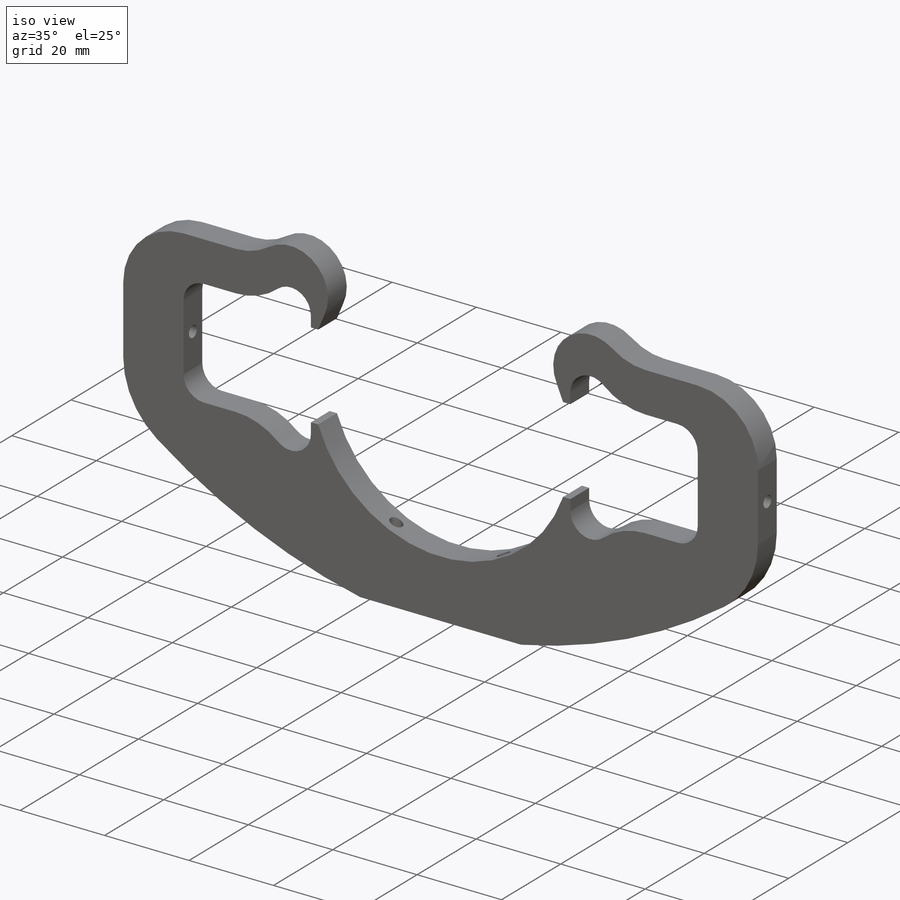
[diagram: iso view]
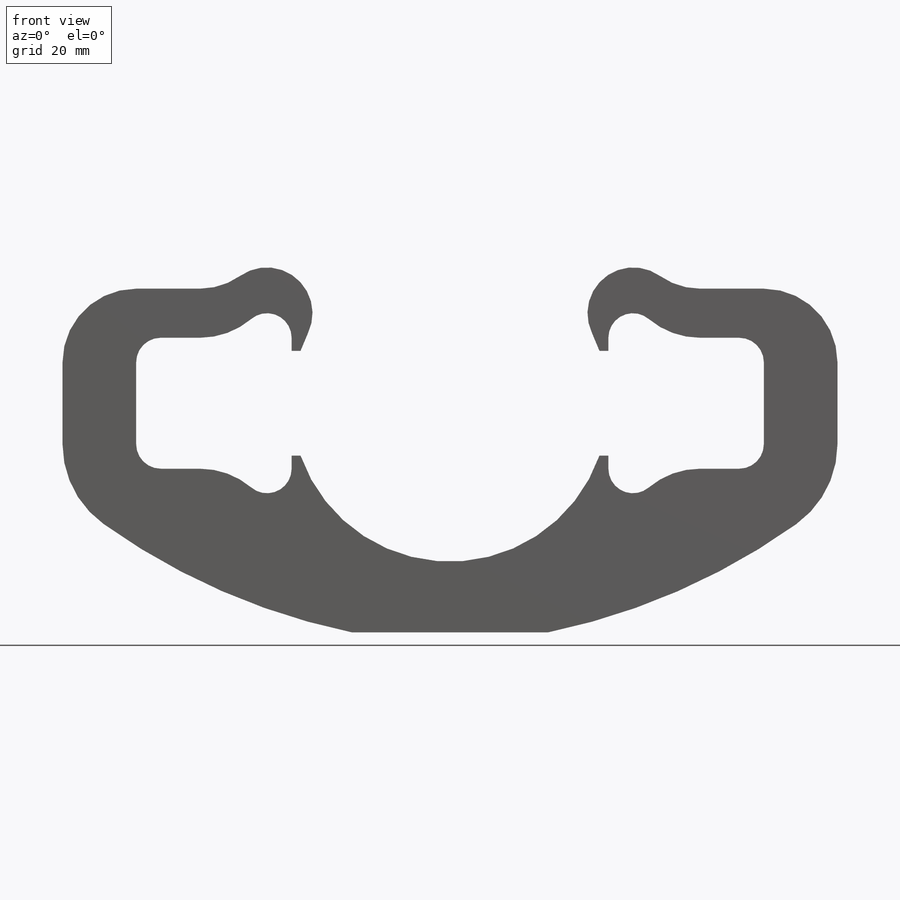
[diagram: front view]
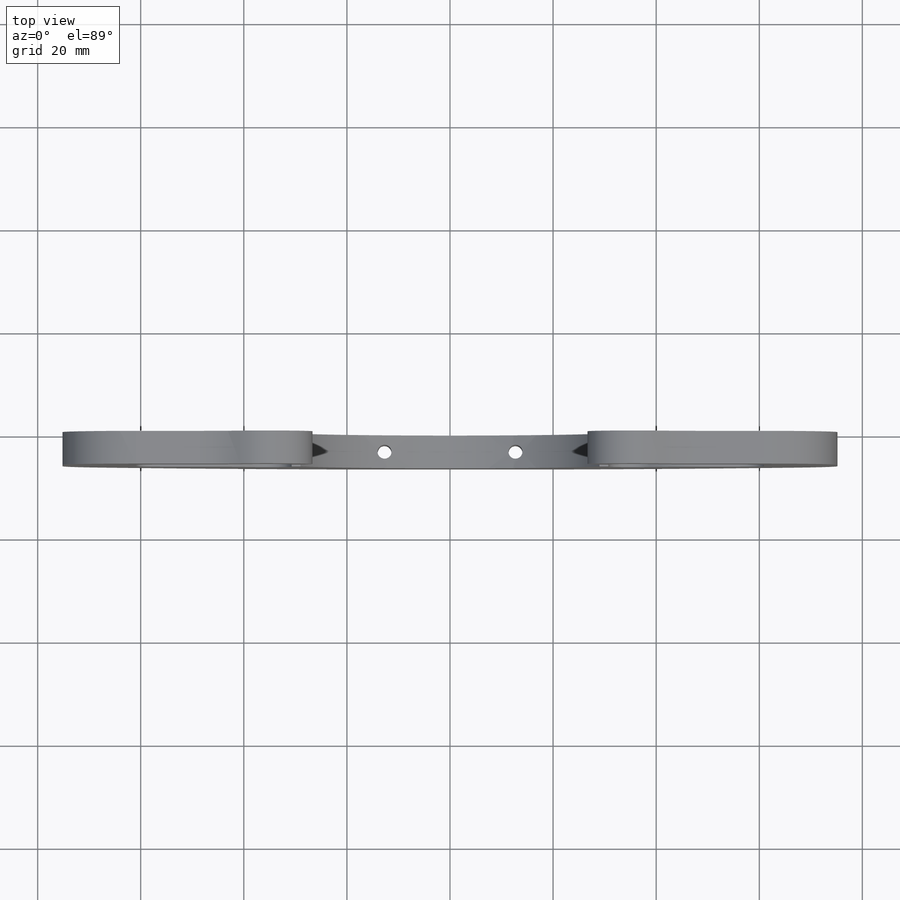
[diagram: top view]
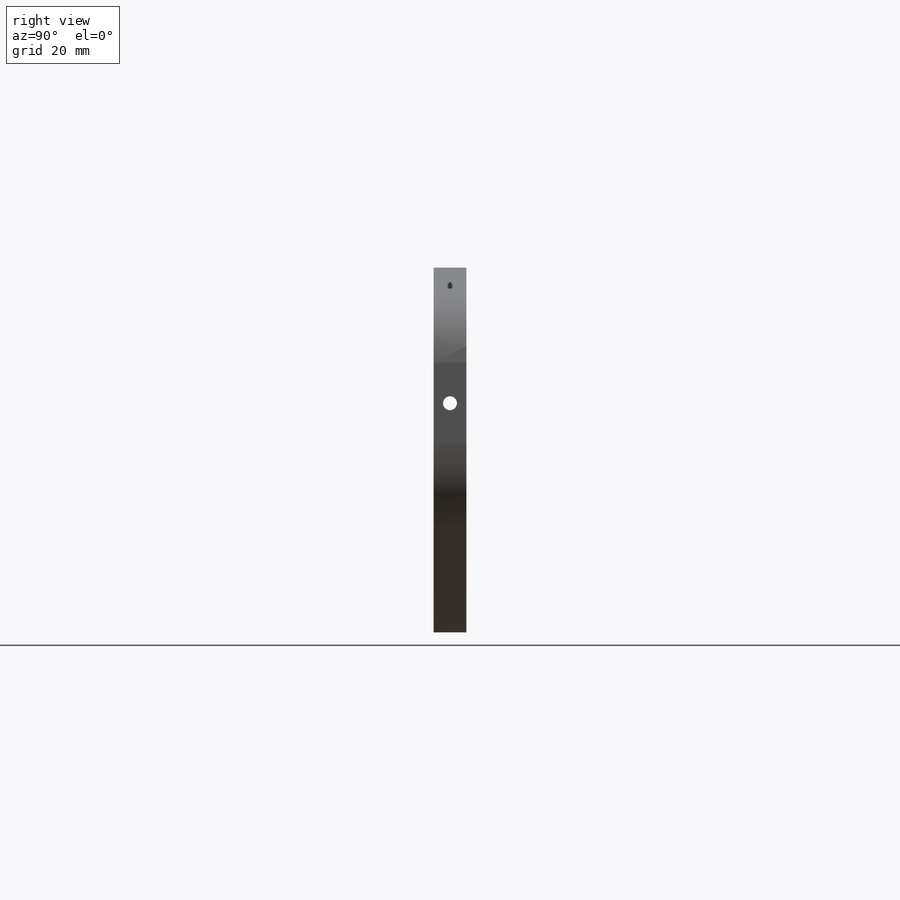
[diagram: right view]
SOLIDWORKS PART (.sldprt)
format: sldprt  version: not decoded by parser v0  size: 336,896 bytes
history: native  units: mm
features: sketch x5, thread x3, hole x2, material x1, extrude x1, mirror x1 (+13 scaffold rows collapsed)
feature tree (26):
  scaffold x13  (default folders/planes/origin — collapsed)
  material  "6061-T6 (SS)"
  sketch  "Sketch1"  dims[c1.D1=55.1mm c1.D5=55.1mm c1.D6=37.075mm c1.D8=~4.472541mm c1.D10=4.7625mm c1.D13=~29.749484mm c1.D7=~2.118866mm c1.D11=4.7625mm c1.D12=4.7625mm c2.D5=~19.225974mm c2.D6=~18.619629mm c2.D10=~111.739561mm c2.D12=127.0mm c2.D14=~19.218587mm c2.D13=8.89mm c2.D2=~14.369858mm c2.D3=~10.960061mm c3.D2=~15.709421mm c3.D3=~12.786738mm c4.D2=25.4mm c4.D3=3.175mm c4.D4=~30.961996mm c4.D5=~33.000369mm c5.D4=3.175mm c5.D5=9.525mm c5.D6=~47.647971mm c5.D7=~48.109048mm c6.D6=~20.097971mm c6.D7=~20.877653mm c7.D6=19.05mm c7.D7=76.2mm c7.D8=25.4mm c8.D8=45.0deg c8.D9=~7.930973mm c9.D9=45.0deg c9.D8=~11.031326mm c10.D8=45.0deg c10.D9=~10.38763mm c11.D9=45.0deg c11.D11=~10.027446mm c11.D12=~10.716644mm c12.D11=19.05mm c12.D12=7.62mm c12.D13=~31.609568mm c12.D7=2.54mm c13.D11=~7.105019mm c13.D12=~0.345451mm c13.D5=7.62mm c13.D6=9.525mm c13.D8=19.05mm c13.D10=15.875mm c14.D12=12.7mm c14.D10=19.05mm c14.D13=2.54mm c14.D8=19.05mm c14.D4=44.45mm]
  extrude  "Boss-Extrude1"  Depth=6.35mm
  mirror  "Mirror1"
  hole  "#6-32 Tapped Hole2"  [1 undecoded]
  sketch  "Sketch3"  dims[D1=25.4mm D2=~3.27428mm]
  thread  "Hole Thread4"  Diameter=3.5052mm  [1 undecoded]
  thread  "Hole Thread5"  Diameter=3.5052mm  [1 undecoded]
  sketch  "Sketch2"  dims[hole-wizard template sketch: 60 standard entries collapsed; hole parameters kept: c18.Thru Tap Drill Depth=~70.801966mm]
  hole  "#6-32 Tapped Hole1"  Diameter=2.7051mm Depth=150.35mm
  sketch  "Sketch5"  dims[D1=~98.378798mm]
  sketch  "Sketch4"  dims[hole-wizard template sketch: 60 standard entries collapsed; hole parameters kept: c18.Thru Tap Drill Depth=150.35mm]
  thread  "Hole Thread3"  Diameter=3.5052mm  [1 undecoded]
decode coverage: 10 of 12 modeling features carry decoded parameters
note: ~ marks probable driven/reference dimensions
note: 4 parameter values undecoded
note: suppression state not decoded; provenance and decode notes live in map.json
